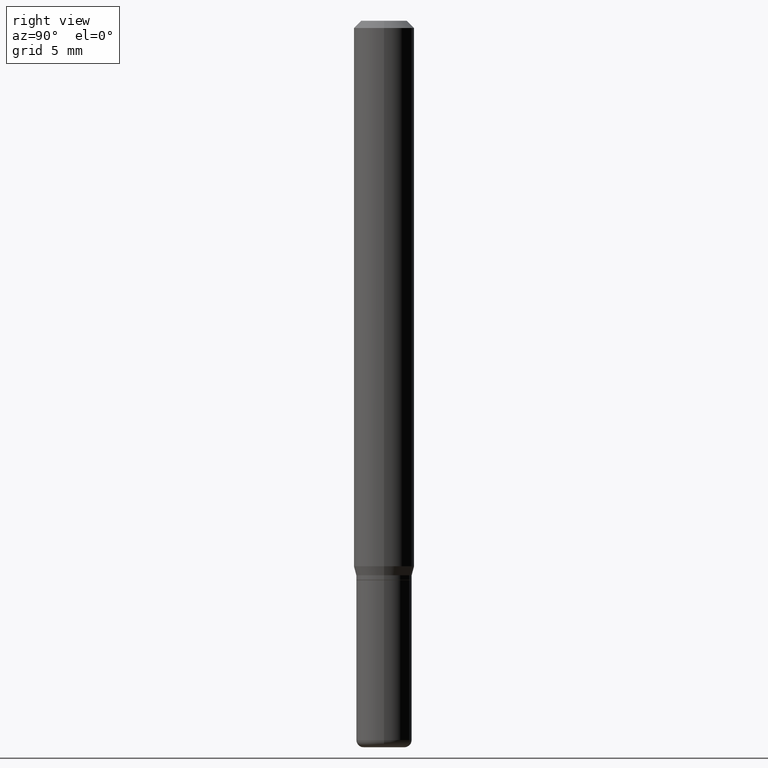
[diagram: clean part render]
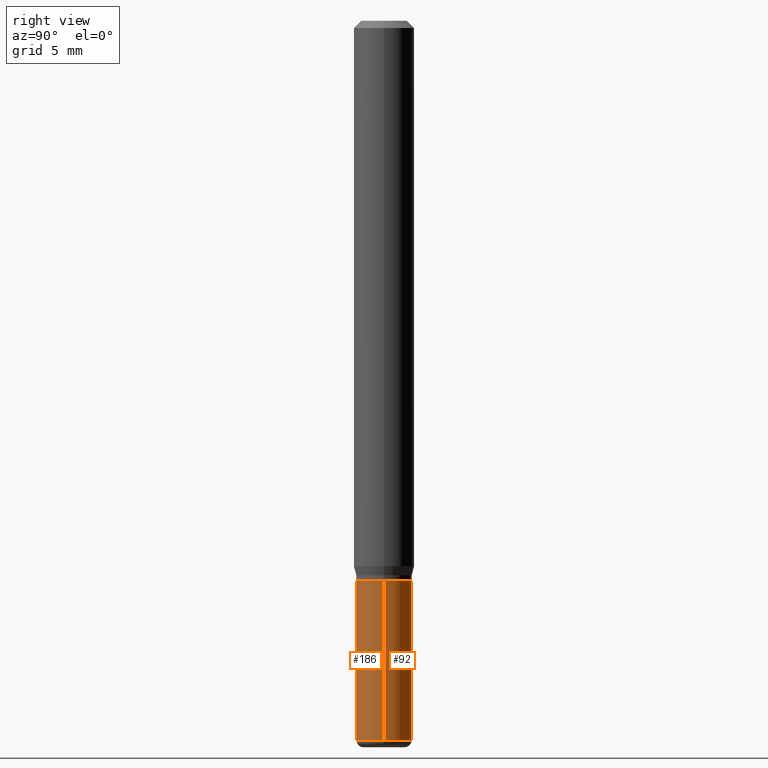
[diagram: same view with one multi-face feature highlighted, each face labeled with its STEP entity id]
A machine part, right view. The highlighted faces form ONE feature: a constant-radius fillet chain: 2 tangent blend faces with common blend radius 1.4605 mm. The faces share edges in the B-rep.
Their STEP definitions:
[1] entity #92 (Cylinder):
#3 = CARTESIAN_POINT ( 'NONE',  ( -0.05750000000000000250, -4.200193294210894862E-15, -1.155000000000000027 ) ) ;
#4 = DIRECTION ( 'NONE',  ( -2.445468806185136597E-29, 3.491481338843145583E-15, 1.000000000000000000 ) ) ;
#21 = ORIENTED_EDGE ( 'NONE', *, *, #244, .T. ) ;
#28 = ORIENTED_EDGE ( 'NONE', *, *, #278, .F. ) ;
#36 = CARTESIAN_POINT ( 'NONE',  ( 0.05749999999999999556, -4.015203539669603161E-16, 2.803801646082662590E-30 ) ) ;
#50 = DIRECTION ( 'NONE',  ( -2.445468806185136597E-29, 3.491481338843145583E-15, 1.000000000000000000 ) ) ;
#85 = DIRECTION ( 'NONE',  ( 1.000000000000000000, -6.982962677686266711E-15, 4.876176775795935232E-29 ) ) ;
#89 = EDGE_LOOP ( 'NONE', ( #21, #494, #28, #373 ) ) ;
#92 = ADVANCED_FACE ( 'NONE', ( #517 ), #312, .T. ) ;
#107 = EDGE_CURVE ( 'NONE', #469, #262, #277, .T. ) ;
#109 = CARTESIAN_POINT ( 'NONE',  ( 0.05749999999999998168, -5.586370142149031512E-15, -1.485000000000000098 ) ) ;
#115 = CARTESIAN_POINT ( 'NONE',  ( 0.05750000000000000250, -4.434181300330794192E-15, -1.155000000000000027 ) ) ;
#135 = LINE ( 'NONE', #170, #146 ) ;
#146 = VECTOR ( 'NONE', #413, 39.37007874015748143 ) ;
#153 = VERTEX_POINT ( 'NONE', #3 ) ;
#160 = DIRECTION ( 'NONE',  ( -2.445468806185136597E-29, 3.491481338843145583E-15, 1.000000000000000000 ) ) ;
#170 = CARTESIAN_POINT ( 'NONE',  ( -0.05749999999999999556, 4.085620730620575753E-16, -2.828387676896570362E-30 ) ) ;
#194 = CARTESIAN_POINT ( 'NONE',  ( 0.000000000000000000, 0.000000000000000000, 0.000000000000000000 ) ) ;
#195 = CIRCLE ( 'NONE', #321, 0.05749999999999998168 ) ;
#200 = CARTESIAN_POINT ( 'NONE',  ( -0.05749999999999998168, -4.200193294210894862E-15, -1.485000000000000098 ) ) ;
#222 = AXIS2_PLACEMENT_3D ( 'NONE', #194, #160, #85 ) ;
#223 = EDGE_CURVE ( 'NONE', #269, #153, #135, .T. ) ;
#229 = AXIS2_PLACEMENT_3D ( 'NONE', #355, #4, #401 ) ;
#244 = EDGE_CURVE ( 'NONE', #469, #269, #195, .T. ) ;
#257 = VECTOR ( 'NONE', #354, 39.37007874015748143 ) ;
#262 = VERTEX_POINT ( 'NONE', #115 ) ;
#269 = VERTEX_POINT ( 'NONE', #200 ) ;
#277 = LINE ( 'NONE', #36, #257 ) ;
#278 = EDGE_CURVE ( 'NONE', #262, #153, #412, .T. ) ;
#312 = CYLINDRICAL_SURFACE ( 'NONE', #222, 0.05749999999999999556 ) ;
#321 = AXIS2_PLACEMENT_3D ( 'NONE', #358, #50, #323 ) ;
#323 = DIRECTION ( 'NONE',  ( 1.000000000000000000, -6.982962677686258822E-15, 0.000000000000000000 ) ) ;
#354 = DIRECTION ( 'NONE',  ( -2.445468806185136877E-29, 3.491481338843145188E-15, 1.000000000000000000 ) ) ;
#355 = CARTESIAN_POINT ( 'NONE',  ( 2.824516471143833307E-29, -4.032660946363833383E-15, -1.155000000000000027 ) ) ;
#358 = CARTESIAN_POINT ( 'NONE',  ( 3.631521177184928138E-29, -5.184849788182071492E-15, -1.485000000000000098 ) ) ;
#373 = ORIENTED_EDGE ( 'NONE', *, *, #107, .F. ) ;
#401 = DIRECTION ( 'NONE',  ( 1.000000000000000000, -6.982962677686273810E-15, 0.000000000000000000 ) ) ;
#412 = CIRCLE ( 'NONE', #229, 0.05750000000000000250 ) ;
#413 = DIRECTION ( 'NONE',  ( -2.445468806185136877E-29, 3.491481338843145188E-15, 1.000000000000000000 ) ) ;
#469 = VERTEX_POINT ( 'NONE', #109 ) ;
#494 = ORIENTED_EDGE ( 'NONE', *, *, #223, .T. ) ;
#517 = FACE_OUTER_BOUND ( 'NONE', #89, .T. ) ;
[2] entity #186 (Cylinder):
#3 = CARTESIAN_POINT ( 'NONE',  ( -0.05750000000000000250, -4.200193294210894862E-15, -1.155000000000000027 ) ) ;
#5 = DIRECTION ( 'NONE',  ( 1.000000000000000000, -6.982962677686266711E-15, 4.876176775795935232E-29 ) ) ;
#22 = DIRECTION ( 'NONE',  ( -2.445468806185136597E-29, 3.491481338843145583E-15, 1.000000000000000000 ) ) ;
#36 = CARTESIAN_POINT ( 'NONE',  ( 0.05749999999999999556, -4.015203539669603161E-16, 2.803801646082662590E-30 ) ) ;
#47 = CYLINDRICAL_SURFACE ( 'NONE', #366, 0.05749999999999999556 ) ;
#88 = CIRCLE ( 'NONE', #367, 0.05749999999999998168 ) ;
#107 = EDGE_CURVE ( 'NONE', #469, #262, #277, .T. ) ;
#109 = CARTESIAN_POINT ( 'NONE',  ( 0.05749999999999998168, -5.586370142149031512E-15, -1.485000000000000098 ) ) ;
#115 = CARTESIAN_POINT ( 'NONE',  ( 0.05750000000000000250, -4.434181300330794192E-15, -1.155000000000000027 ) ) ;
#135 = LINE ( 'NONE', #170, #146 ) ;
#146 = VECTOR ( 'NONE', #413, 39.37007874015748143 ) ;
#153 = VERTEX_POINT ( 'NONE', #3 ) ;
#170 = CARTESIAN_POINT ( 'NONE',  ( -0.05749999999999999556, 4.085620730620575753E-16, -2.828387676896570362E-30 ) ) ;
#186 = ADVANCED_FACE ( 'NONE', ( #474 ), #47, .T. ) ;
#187 = EDGE_LOOP ( 'NONE', ( #430, #456, #330, #308 ) ) ;
#199 = CARTESIAN_POINT ( 'NONE',  ( 0.000000000000000000, 0.000000000000000000, 0.000000000000000000 ) ) ;
#200 = CARTESIAN_POINT ( 'NONE',  ( -0.05749999999999998168, -4.200193294210894862E-15, -1.485000000000000098 ) ) ;
#202 = DIRECTION ( 'NONE',  ( -2.445468806185136597E-29, 3.491481338843145583E-15, 1.000000000000000000 ) ) ;
#215 = DIRECTION ( 'NONE',  ( 1.000000000000000000, -6.982962677686273810E-15, 0.000000000000000000 ) ) ;
#223 = EDGE_CURVE ( 'NONE', #269, #153, #135, .T. ) ;
#257 = VECTOR ( 'NONE', #354, 39.37007874015748143 ) ;
#262 = VERTEX_POINT ( 'NONE', #115 ) ;
#269 = VERTEX_POINT ( 'NONE', #200 ) ;
#277 = LINE ( 'NONE', #36, #257 ) ;
#292 = EDGE_CURVE ( 'NONE', #153, #262, #322, .T. ) ;
#308 = ORIENTED_EDGE ( 'NONE', *, *, #292, .F. ) ;
#322 = CIRCLE ( 'NONE', #431, 0.05750000000000000250 ) ;
#326 = EDGE_CURVE ( 'NONE', #269, #469, #88, .T. ) ;
#327 = DIRECTION ( 'NONE',  ( 1.000000000000000000, -6.982962677686258822E-15, 0.000000000000000000 ) ) ;
#330 = ORIENTED_EDGE ( 'NONE', *, *, #107, .T. ) ;
#331 = CARTESIAN_POINT ( 'NONE',  ( 3.631521177184928138E-29, -5.184849788182071492E-15, -1.485000000000000098 ) ) ;
#354 = DIRECTION ( 'NONE',  ( -2.445468806185136877E-29, 3.491481338843145188E-15, 1.000000000000000000 ) ) ;
#366 = AXIS2_PLACEMENT_3D ( 'NONE', #199, #202, #5 ) ;
#367 = AXIS2_PLACEMENT_3D ( 'NONE', #331, #22, #327 ) ;
#374 = CARTESIAN_POINT ( 'NONE',  ( 2.824516471143833307E-29, -4.032660946363833383E-15, -1.155000000000000027 ) ) ;
#413 = DIRECTION ( 'NONE',  ( -2.445468806185136877E-29, 3.491481338843145188E-15, 1.000000000000000000 ) ) ;
#430 = ORIENTED_EDGE ( 'NONE', *, *, #223, .F. ) ;
#431 = AXIS2_PLACEMENT_3D ( 'NONE', #374, #491, #215 ) ;
#456 = ORIENTED_EDGE ( 'NONE', *, *, #326, .T. ) ;
#469 = VERTEX_POINT ( 'NONE', #109 ) ;
#474 = FACE_OUTER_BOUND ( 'NONE', #187, .T. ) ;
#491 = DIRECTION ( 'NONE',  ( -2.445468806185136597E-29, 3.491481338843145583E-15, 1.000000000000000000 ) ) ;